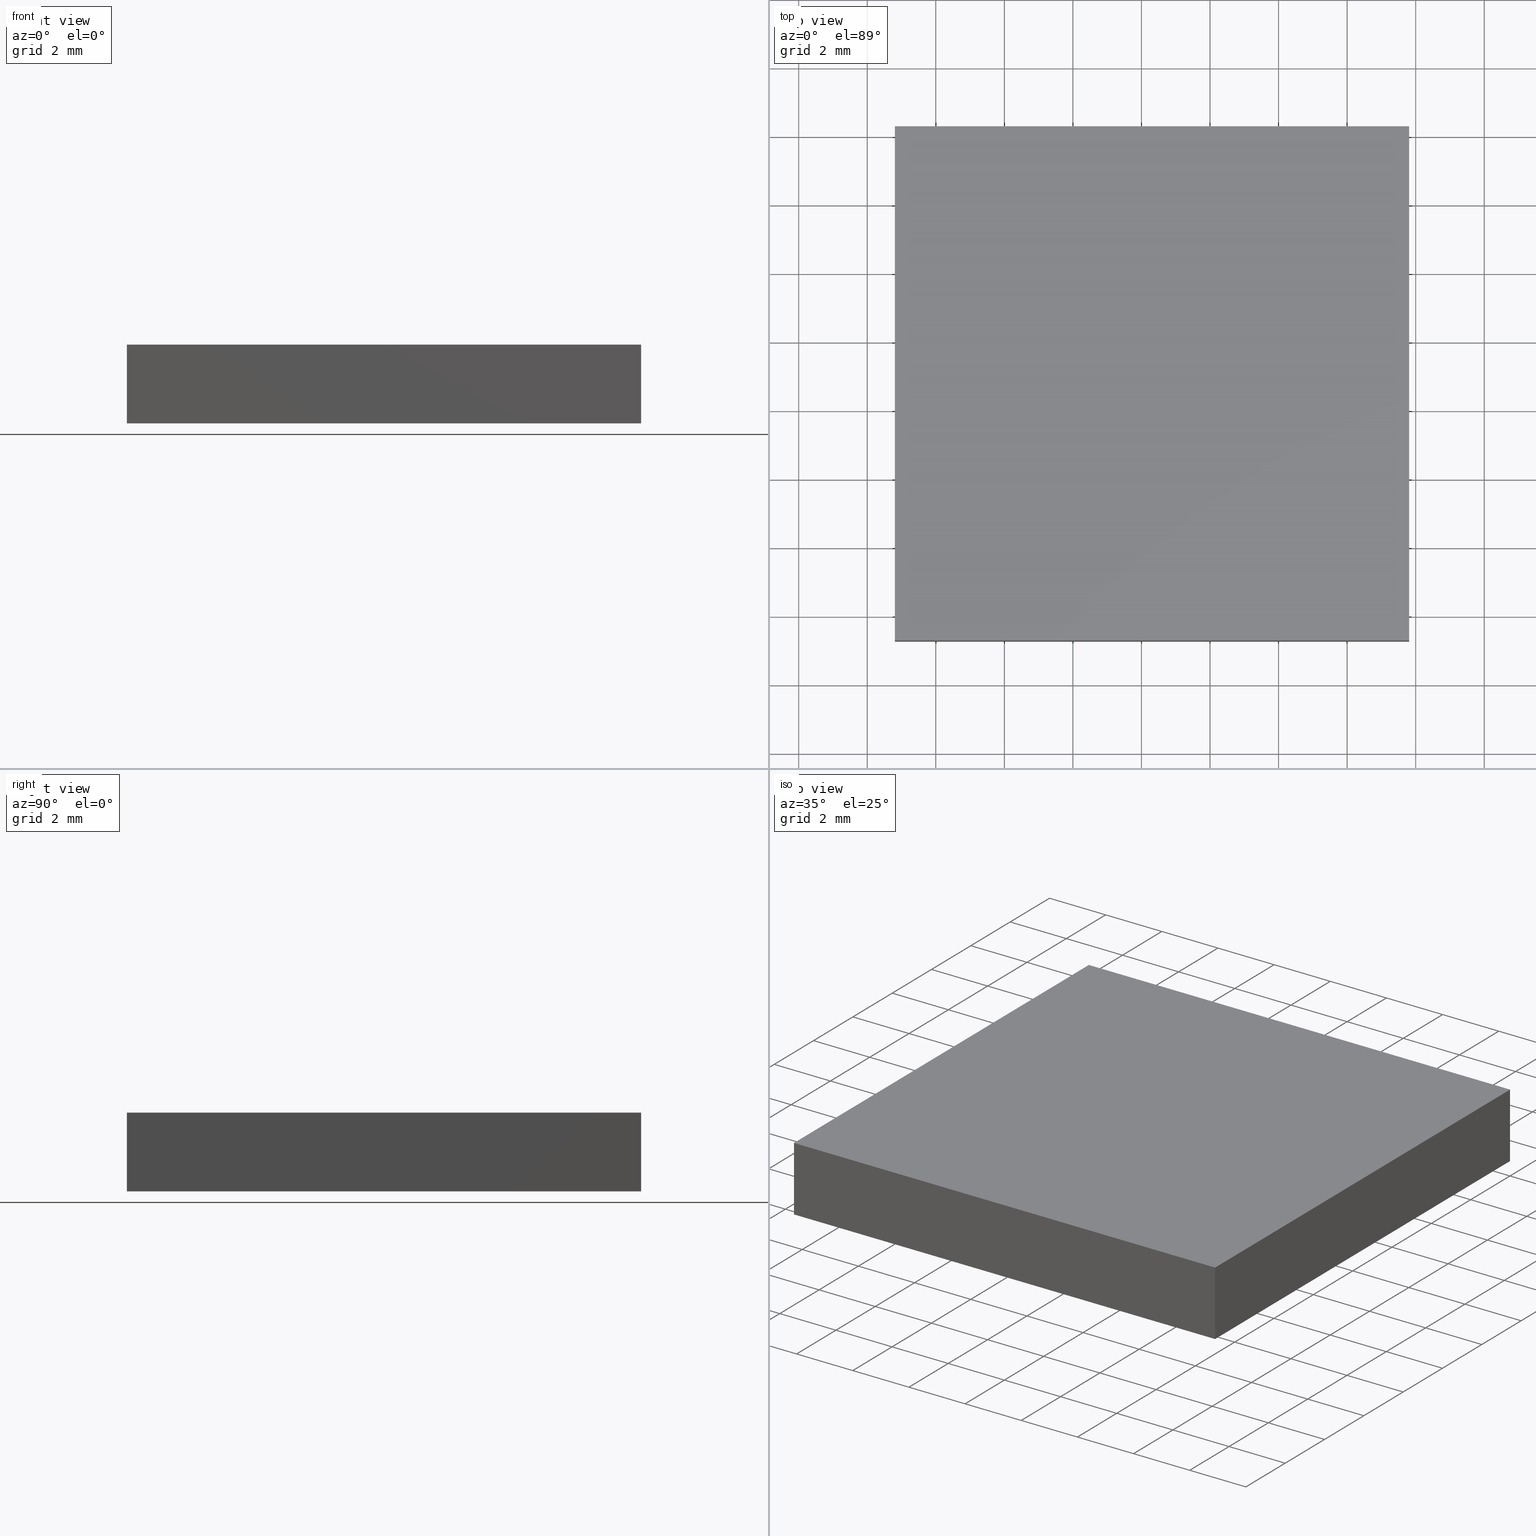
[diagram: canonical four-view strip — front | top / right | iso, engineering-drawing reading convention]
A machine part, canonical four-view strip (front | top / right | iso — engineering-drawing reading convention). The complete STEP part file that produces these views, byte-faithful:
ISO-10303-21;
HEADER;
FILE_DESCRIPTION (( 'STEP AP214' ),
    '1' );
FILE_NAME ('302511.STEP',
    '2019-08-13T05:49:05',
    ( '' ),
    ( '' ),
    'SwSTEP 2.0',
    'SolidWorks 2016',
    '' );
FILE_SCHEMA (( 'AUTOMOTIVE_DESIGN' ));
ENDSEC;

DATA;
#1 = ORIENTED_EDGE ( 'NONE', *, *, #21, .F. ) ;
#2 = FACE_OUTER_BOUND ( 'NONE', #48, .T. ) ;
#3 = EDGE_CURVE ( 'NONE', #170, #145, #12, .T. ) ;
#4 = ADVANCED_BREP_SHAPE_REPRESENTATION ( '302511', ( #119, #177 ), #101 ) ;
#5 = VERTEX_POINT ( 'NONE', #72 ) ;
#6 = AXIS2_PLACEMENT_3D ( 'NONE', #166, #74, #26 ) ;
#7 = CARTESIAN_POINT ( 'NONE',  ( 46.80749197114184300, 38.28162091726329700, 0.0000000000000000000 ) ) ;
#8 = UNCERTAINTY_MEASURE_WITH_UNIT (LENGTH_MEASURE( 1.000000000000000100E-005 ), #151, 'distance_accuracy_value', 'NONE');
#9 = CARTESIAN_POINT ( 'NONE',  ( 61.80749197114184300, 38.28162091726330400, 2.299999999999999800 ) ) ;
#10 = CARTESIAN_POINT ( 'NONE',  ( 0.0000000000000000000, 0.0000000000000000000, 2.299999999999999800 ) ) ;
#11 =( NAMED_UNIT ( * ) PLANE_ANGLE_UNIT ( ) SI_UNIT ( $, .RADIAN. ) );
#12 = LINE ( 'NONE', #23, #98 ) ;
#13 = EDGE_CURVE ( 'NONE', #145, #85, #103, .T. ) ;
#14 = CARTESIAN_POINT ( 'NONE',  ( 61.80749197114184300, 23.28162091726329700, 2.299999999999999800 ) ) ;
#15 = CARTESIAN_POINT ( 'NONE',  ( 61.80749197114184300, 38.28162091726330400, 0.0000000000000000000 ) ) ;
#16 = EDGE_CURVE ( 'NONE', #64, #5, #52, .T. ) ;
#17 = ORIENTED_EDGE ( 'NONE', *, *, #95, .F. ) ;
#18 = APPLICATION_CONTEXT ( 'automotive_design' ) ;
#19 =( LENGTH_UNIT ( ) NAMED_UNIT ( * ) SI_UNIT ( .MILLI., .METRE. ) );
#20 = FACE_OUTER_BOUND ( 'NONE', #198, .T. ) ;
#21 = EDGE_CURVE ( 'NONE', #5, #170, #109, .T. ) ;
#22 = FACE_OUTER_BOUND ( 'NONE', #50, .T. ) ;
#23 = CARTESIAN_POINT ( 'NONE',  ( 46.80749197114185000, 23.28162091726329700, 2.299999999999999800 ) ) ;
#24 = DIRECTION ( 'NONE',  ( -4.625929269271483900E-016, 1.000000000000000000, -0.0000000000000000000 ) ) ;
#25 =( NAMED_UNIT ( * ) SI_UNIT ( $, .STERADIAN. ) SOLID_ANGLE_UNIT ( ) );
#26 = DIRECTION ( 'NONE',  ( -4.625929269271485900E-016, 1.000000000000000000, 0.0000000000000000000 ) ) ;
#27 = PLANE ( 'NONE',  #192 ) ;
#28 = ORIENTED_EDGE ( 'NONE', *, *, #57, .T. ) ;
#29 = FILL_AREA_STYLE_COLOUR ( '', #146 ) ;
#30 = EDGE_CURVE ( 'NONE', #5, #47, #33, .T. ) ;
#31 = UNCERTAINTY_MEASURE_WITH_UNIT (LENGTH_MEASURE( 1.000000000000000100E-005 ), #19, 'distance_accuracy_value', 'NONE');
#32 =( NAMED_UNIT ( * ) SI_UNIT ( $, .STERADIAN. ) SOLID_ANGLE_UNIT ( ) );
#33 = LINE ( 'NONE', #195, #131 ) ;
#34 = MECHANICAL_DESIGN_GEOMETRIC_PRESENTATION_REPRESENTATION (  '', ( #165 ), #156 ) ;
#35 = EDGE_CURVE ( 'NONE', #154, #64, #113, .T. ) ;
#36 = ORIENTED_EDGE ( 'NONE', *, *, #122, .T. ) ;
#37 = SURFACE_STYLE_FILL_AREA ( #140 ) ;
#38 = CARTESIAN_POINT ( 'NONE',  ( 61.80749197114184300, 23.28162091726329700, 0.0000000000000000000 ) ) ;
#39 = PLANE ( 'NONE',  #6 ) ;
#40 = ORIENTED_EDGE ( 'NONE', *, *, #16, .F. ) ;
#41 = LINE ( 'NONE', #59, #171 ) ;
#42 = CARTESIAN_POINT ( 'NONE',  ( 46.80749197114184300, 38.28162091726329700, 2.299999999999999800 ) ) ;
#43 = DIRECTION ( 'NONE',  ( 1.000000000000000000, 0.0000000000000000000, 0.0000000000000000000 ) ) ;
#44 = EDGE_CURVE ( 'NONE', #85, #135, #176, .T. ) ;
#45 = SURFACE_SIDE_STYLE ('',( #155 ) ) ;
#46 = SURFACE_SIDE_STYLE ('',( #37 ) ) ;
#47 = VERTEX_POINT ( 'NONE', #181 ) ;
#48 = EDGE_LOOP ( 'NONE', ( #129, #91, #117, #161 ) ) ;
#49 = FACE_OUTER_BOUND ( 'NONE', #175, .T. ) ;
#50 = EDGE_LOOP ( 'NONE', ( #68, #114, #1, #158 ) ) ;
#51 = ORIENTED_EDGE ( 'NONE', *, *, #13, .F. ) ;
#52 = LINE ( 'NONE', #162, #53 ) ;
#53 = VECTOR ( 'NONE', #69, 1000.000000000000000 ) ;
#54 = FACE_OUTER_BOUND ( 'NONE', #89, .T. ) ;
#55 = PRODUCT_DEFINITION ( 'δ֪', '', #116, #65 ) ;
#56 = DIRECTION ( 'NONE',  ( 4.625929269271485900E-016, -1.000000000000000000, 0.0000000000000000000 ) ) ;
#57 = EDGE_CURVE ( 'NONE', #135, #47, #189, .T. ) ;
#58 = DIRECTION ( 'NONE',  ( 4.625929269271485900E-016, -1.000000000000000000, 0.0000000000000000000 ) ) ;
#59 = CARTESIAN_POINT ( 'NONE',  ( 46.80749197114185000, 23.28162091726329700, 2.299999999999999800 ) ) ;
#60 = DIRECTION ( 'NONE',  ( 4.625929269271485900E-016, -1.000000000000000000, 0.0000000000000000000 ) ) ;
#61 = EDGE_CURVE ( 'NONE', #64, #135, #63, .T. ) ;
#62 = APPLICATION_CONTEXT ( 'automotive_design' ) ;
#63 = LINE ( 'NONE', #121, #67 ) ;
#64 = VERTEX_POINT ( 'NONE', #9 ) ;
#65 = PRODUCT_DEFINITION_CONTEXT ( 'detailed design', #62, 'design' ) ;
#66 = ADVANCED_FACE ( 'NONE', ( #20 ), #123, .T. ) ;
#67 = VECTOR ( 'NONE', #100, 1000.000000000000000 ) ;
#68 = ORIENTED_EDGE ( 'NONE', *, *, #95, .T. ) ;
#69 = DIRECTION ( 'NONE',  ( -1.000000000000000000, -4.625929269271485900E-016, -0.0000000000000000000 ) ) ;
#70 = CARTESIAN_POINT ( 'NONE',  ( 61.80749197114184300, 38.28162091726330400, 2.299999999999999800 ) ) ;
#71 = AXIS2_PLACEMENT_3D ( 'NONE', #124, #185, #197 ) ;
#72 = CARTESIAN_POINT ( 'NONE',  ( 46.80749197114184300, 38.28162091726329700, 2.299999999999999800 ) ) ;
#73 = DIRECTION ( 'NONE',  ( 4.625929269271483900E-016, -1.000000000000000000, 0.0000000000000000000 ) ) ;
#74 = DIRECTION ( 'NONE',  ( 1.000000000000000000, 4.625929269271485900E-016, -0.0000000000000000000 ) ) ;
#75 = PRESENTATION_STYLE_ASSIGNMENT (( #126 ) ) ;
#76 = COLOUR_RGB ( '',1.000000000000000000, 1.000000000000000000, 1.000000000000000000 ) ;
#77 =( NAMED_UNIT ( * ) SI_UNIT ( $, .STERADIAN. ) SOLID_ANGLE_UNIT ( ) );
#78 = PRODUCT_CONTEXT ( 'NONE', #18, 'mechanical' ) ;
#79 = FILL_AREA_STYLE_COLOUR ( '', #76 ) ;
#80 = ORIENTED_EDGE ( 'NONE', *, *, #21, .T. ) ;
#81 = LINE ( 'NONE', #7, #200 ) ;
#82 = PRODUCT_RELATED_PRODUCT_CATEGORY ( 'part', '', ( #182 ) ) ;
#83 = AXIS2_PLACEMENT_3D ( 'NONE', #136, #105, #43 ) ;
#84 = CARTESIAN_POINT ( 'NONE',  ( 61.80749197114184300, 38.28162091726330400, 0.0000000000000000000 ) ) ;
#85 = VERTEX_POINT ( 'NONE', #38 ) ;
#86 = DIRECTION ( 'NONE',  ( 1.000000000000000000, 0.0000000000000000000, 0.0000000000000000000 ) ) ;
#87 = CARTESIAN_POINT ( 'NONE',  ( 61.80749197114184300, 23.28162091726329700, 2.299999999999999800 ) ) ;
#88 = PLANE ( 'NONE',  #71 ) ;
#89 = EDGE_LOOP ( 'NONE', ( #28, #157, #40, #90 ) ) ;
#90 = ORIENTED_EDGE ( 'NONE', *, *, #61, .T. ) ;
#91 = ORIENTED_EDGE ( 'NONE', *, *, #153, .F. ) ;
#92 = VECTOR ( 'NONE', #56, 1000.000000000000000 ) ;
#93 = PRESENTATION_STYLE_ASSIGNMENT (( #187 ) ) ;
#94 = PRODUCT_DEFINITION_SHAPE ( 'NONE', 'NONE',  #55 ) ;
#95 = EDGE_CURVE ( 'NONE', #47, #145, #81, .T. ) ;
#96 = VECTOR ( 'NONE', #110, 1000.000000000000000 ) ;
#97 = VECTOR ( 'NONE', #144, 1000.000000000000000 ) ;
#98 = VECTOR ( 'NONE', #132, 1000.000000000000000 ) ;
#99 = DIRECTION ( 'NONE',  ( -0.0000000000000000000, -0.0000000000000000000, -1.000000000000000000 ) ) ;
#100 = DIRECTION ( 'NONE',  ( -0.0000000000000000000, -0.0000000000000000000, -1.000000000000000000 ) ) ;
#101 =( GEOMETRIC_REPRESENTATION_CONTEXT ( 3 ) GLOBAL_UNCERTAINTY_ASSIGNED_CONTEXT ( ( #178 ) ) GLOBAL_UNIT_ASSIGNED_CONTEXT ( ( #108, #169, #77 ) ) REPRESENTATION_CONTEXT ( 'NONE', 'WORKASPACE' ) );
#102 = DIRECTION ( 'NONE',  ( -0.0000000000000000000, 0.0000000000000000000, 1.000000000000000000 ) ) ;
#103 = LINE ( 'NONE', #194, #149 ) ;
#104 = DIRECTION ( 'NONE',  ( 1.000000000000000000, 0.0000000000000000000, 0.0000000000000000000 ) ) ;
#105 = DIRECTION ( 'NONE',  ( -0.0000000000000000000, 0.0000000000000000000, 1.000000000000000000 ) ) ;
#106 = ORIENTED_EDGE ( 'NONE', *, *, #44, .F. ) ;
#107 = MECHANICAL_DESIGN_GEOMETRIC_PRESENTATION_REPRESENTATION (  '', ( #115 ), #111 ) ;
#108 =( LENGTH_UNIT ( ) NAMED_UNIT ( * ) SI_UNIT ( .MILLI., .METRE. ) );
#109 = LINE ( 'NONE', #163, #92 ) ;
#110 = DIRECTION ( 'NONE',  ( -0.0000000000000000000, -0.0000000000000000000, -1.000000000000000000 ) ) ;
#111 =( GEOMETRIC_REPRESENTATION_CONTEXT ( 3 ) GLOBAL_UNCERTAINTY_ASSIGNED_CONTEXT ( ( #31 ) ) GLOBAL_UNIT_ASSIGNED_CONTEXT ( ( #19, #112, #32 ) ) REPRESENTATION_CONTEXT ( 'NONE', 'WORKASPACE' ) );
#112 =( NAMED_UNIT ( * ) PLANE_ANGLE_UNIT ( ) SI_UNIT ( $, .RADIAN. ) );
#113 = LINE ( 'NONE', #70, #191 ) ;
#114 = ORIENTED_EDGE ( 'NONE', *, *, #3, .F. ) ;
#115 = STYLED_ITEM ( 'NONE', ( #93 ), #4 ) ;
#116 = PRODUCT_DEFINITION_FORMATION_WITH_SPECIFIED_SOURCE ( '�κ�', '', #182, .NOT_KNOWN. ) ;
#117 = ORIENTED_EDGE ( 'NONE', *, *, #122, .F. ) ;
#118 = ADVANCED_FACE ( 'NONE', ( #49 ), #134, .F. ) ;
#119 = MANIFOLD_SOLID_BREP ( '͹̨-����1', #147 ) ;
#120 = EDGE_LOOP ( 'NONE', ( #17, #186, #106, #51 ) ) ;
#121 = CARTESIAN_POINT ( 'NONE',  ( 61.80749197114184300, 38.28162091726330400, 2.299999999999999800 ) ) ;
#122 = EDGE_CURVE ( 'NONE', #170, #154, #41, .T. ) ;
#123 = PLANE ( 'NONE',  #173 ) ;
#124 = CARTESIAN_POINT ( 'NONE',  ( 46.80749197114185000, 23.28162091726329700, 2.299999999999999800 ) ) ;
#125 = ORIENTED_EDGE ( 'NONE', *, *, #153, .T. ) ;
#126 = SURFACE_STYLE_USAGE ( .BOTH. , #45 ) ;
#127 = LINE ( 'NONE', #87, #96 ) ;
#128 = APPLICATION_PROTOCOL_DEFINITION ( 'draft international standard', 'automotive_design', 1998, #18 ) ;
#129 = ORIENTED_EDGE ( 'NONE', *, *, #13, .T. ) ;
#130 = ADVANCED_FACE ( 'NONE', ( #22 ), #39, .F. ) ;
#131 = VECTOR ( 'NONE', #99, 1000.000000000000000 ) ;
#132 = DIRECTION ( 'NONE',  ( -0.0000000000000000000, -0.0000000000000000000, -1.000000000000000000 ) ) ;
#133 = ORIENTED_EDGE ( 'NONE', *, *, #16, .T. ) ;
#134 = PLANE ( 'NONE',  #139 ) ;
#135 = VERTEX_POINT ( 'NONE', #15 ) ;
#136 = CARTESIAN_POINT ( 'NONE',  ( 0.0000000000000000000, 0.0000000000000000000, 0.0000000000000000000 ) ) ;
#137 = ORIENTED_EDGE ( 'NONE', *, *, #44, .T. ) ;
#138 = DIRECTION ( 'NONE',  ( -1.000000000000000000, -4.625929269271483900E-016, 0.0000000000000000000 ) ) ;
#139 = AXIS2_PLACEMENT_3D ( 'NONE', #184, #138, #73 ) ;
#140 = FILL_AREA_STYLE ('',( #79 ) ) ;
#141 = DIRECTION ( 'NONE',  ( 1.000000000000000000, 0.0000000000000000000, 0.0000000000000000000 ) ) ;
#142 = VECTOR ( 'NONE', #164, 1000.000000000000000 ) ;
#143 = ADVANCED_FACE ( 'NONE', ( #174 ), #202, .F. ) ;
#144 = DIRECTION ( 'NONE',  ( -4.625929269271483900E-016, 1.000000000000000000, -0.0000000000000000000 ) ) ;
#145 = VERTEX_POINT ( 'NONE', #183 ) ;
#146 = COLOUR_RGB ( '',1.000000000000000000, 1.000000000000000000, 1.000000000000000000 ) ;
#147 = CLOSED_SHELL ( 'NONE', ( #130, #160, #118, #193, #66, #143 ) ) ;
#148 = CARTESIAN_POINT ( 'NONE',  ( 46.80749197114185000, 23.28162091726329700, 2.299999999999999800 ) ) ;
#149 = VECTOR ( 'NONE', #86, 1000.000000000000000 ) ;
#150 = CARTESIAN_POINT ( 'NONE',  ( 0.0000000000000000000, 0.0000000000000000000, 0.0000000000000000000 ) ) ;
#151 =( LENGTH_UNIT ( ) NAMED_UNIT ( * ) SI_UNIT ( .MILLI., .METRE. ) );
#152 = DIRECTION ( 'NONE',  ( 0.0000000000000000000, 0.0000000000000000000, 1.000000000000000000 ) ) ;
#153 = EDGE_CURVE ( 'NONE', #154, #85, #127, .T. ) ;
#154 = VERTEX_POINT ( 'NONE', #14 ) ;
#155 = SURFACE_STYLE_FILL_AREA ( #196 ) ;
#156 =( GEOMETRIC_REPRESENTATION_CONTEXT ( 3 ) GLOBAL_UNCERTAINTY_ASSIGNED_CONTEXT ( ( #8 ) ) GLOBAL_UNIT_ASSIGNED_CONTEXT ( ( #151, #11, #25 ) ) REPRESENTATION_CONTEXT ( 'NONE', 'WORKASPACE' ) );
#157 = ORIENTED_EDGE ( 'NONE', *, *, #30, .F. ) ;
#158 = ORIENTED_EDGE ( 'NONE', *, *, #30, .T. ) ;
#159 = PRESENTATION_LAYER_ASSIGNMENT (  '', '', ( #115 ) ) ;
#160 = ADVANCED_FACE ( 'NONE', ( #2 ), #88, .F. ) ;
#161 = ORIENTED_EDGE ( 'NONE', *, *, #3, .T. ) ;
#162 = CARTESIAN_POINT ( 'NONE',  ( 46.80749197114184300, 38.28162091726329700, 2.299999999999999800 ) ) ;
#163 = CARTESIAN_POINT ( 'NONE',  ( 46.80749197114184300, 38.28162091726329700, 2.299999999999999800 ) ) ;
#164 = DIRECTION ( 'NONE',  ( -1.000000000000000000, -4.625929269271485900E-016, -0.0000000000000000000 ) ) ;
#165 = STYLED_ITEM ( 'NONE', ( #75 ), #119 ) ;
#166 = CARTESIAN_POINT ( 'NONE',  ( 46.80749197114184300, 38.28162091726329700, 2.299999999999999800 ) ) ;
#167 = ORIENTED_EDGE ( 'NONE', *, *, #35, .T. ) ;
#168 = DIRECTION ( 'NONE',  ( 1.000000000000000000, 4.625929269271485900E-016, 0.0000000000000000000 ) ) ;
#169 =( NAMED_UNIT ( * ) PLANE_ANGLE_UNIT ( ) SI_UNIT ( $, .RADIAN. ) );
#170 = VERTEX_POINT ( 'NONE', #148 ) ;
#171 = VECTOR ( 'NONE', #199, 1000.000000000000000 ) ;
#172 = APPLICATION_PROTOCOL_DEFINITION ( 'draft international standard', 'automotive_design', 1998, #62 ) ;
#173 = AXIS2_PLACEMENT_3D ( 'NONE', #10, #102, #104 ) ;
#174 = FACE_OUTER_BOUND ( 'NONE', #120, .T. ) ;
#175 = EDGE_LOOP ( 'NONE', ( #137, #179, #190, #125 ) ) ;
#176 = LINE ( 'NONE', #84, #97 ) ;
#177 = AXIS2_PLACEMENT_3D ( 'NONE', #150, #152, #141 ) ;
#178 = UNCERTAINTY_MEASURE_WITH_UNIT (LENGTH_MEASURE( 1.000000000000000100E-005 ), #108, 'distance_accuracy_value', 'NONE');
#179 = ORIENTED_EDGE ( 'NONE', *, *, #61, .F. ) ;
#180 = CARTESIAN_POINT ( 'NONE',  ( 46.80749197114184300, 38.28162091726329700, 0.0000000000000000000 ) ) ;
#181 = CARTESIAN_POINT ( 'NONE',  ( 46.80749197114184300, 38.28162091726329700, 0.0000000000000000000 ) ) ;
#182 = PRODUCT ( '302511', '302511', '', ( #78 ) ) ;
#183 = CARTESIAN_POINT ( 'NONE',  ( 46.80749197114185000, 23.28162091726329700, 0.0000000000000000000 ) ) ;
#184 = CARTESIAN_POINT ( 'NONE',  ( 61.80749197114184300, 38.28162091726330400, 2.299999999999999800 ) ) ;
#185 = DIRECTION ( 'NONE',  ( 0.0000000000000000000, 1.000000000000000000, 0.0000000000000000000 ) ) ;
#186 = ORIENTED_EDGE ( 'NONE', *, *, #57, .F. ) ;
#187 = SURFACE_STYLE_USAGE ( .BOTH. , #46 ) ;
#188 = PRESENTATION_LAYER_ASSIGNMENT (  '', '', ( #165 ) ) ;
#189 = LINE ( 'NONE', #180, #142 ) ;
#190 = ORIENTED_EDGE ( 'NONE', *, *, #35, .F. ) ;
#191 = VECTOR ( 'NONE', #24, 1000.000000000000000 ) ;
#192 = AXIS2_PLACEMENT_3D ( 'NONE', #42, #60, #168 ) ;
#193 = ADVANCED_FACE ( 'NONE', ( #54 ), #27, .F. ) ;
#194 = CARTESIAN_POINT ( 'NONE',  ( 46.80749197114185000, 23.28162091726329700, 0.0000000000000000000 ) ) ;
#195 = CARTESIAN_POINT ( 'NONE',  ( 46.80749197114184300, 38.28162091726329700, 2.299999999999999800 ) ) ;
#196 = FILL_AREA_STYLE ('',( #29 ) ) ;
#197 = DIRECTION ( 'NONE',  ( 0.0000000000000000000, -0.0000000000000000000, 1.000000000000000000 ) ) ;
#198 = EDGE_LOOP ( 'NONE', ( #80, #36, #167, #133 ) ) ;
#199 = DIRECTION ( 'NONE',  ( 1.000000000000000000, 0.0000000000000000000, 0.0000000000000000000 ) ) ;
#200 = VECTOR ( 'NONE', #58, 1000.000000000000000 ) ;
#201 = SHAPE_DEFINITION_REPRESENTATION ( #94, #4 ) ;
#202 = PLANE ( 'NONE',  #83 ) ;
ENDSEC;
END-ISO-10303-21;
